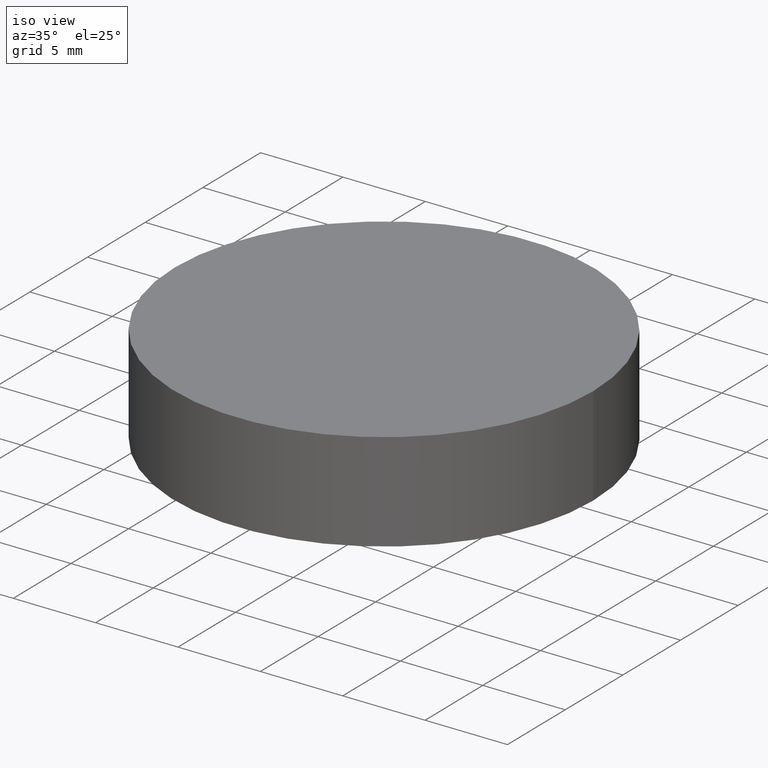
[diagram: clean part render]
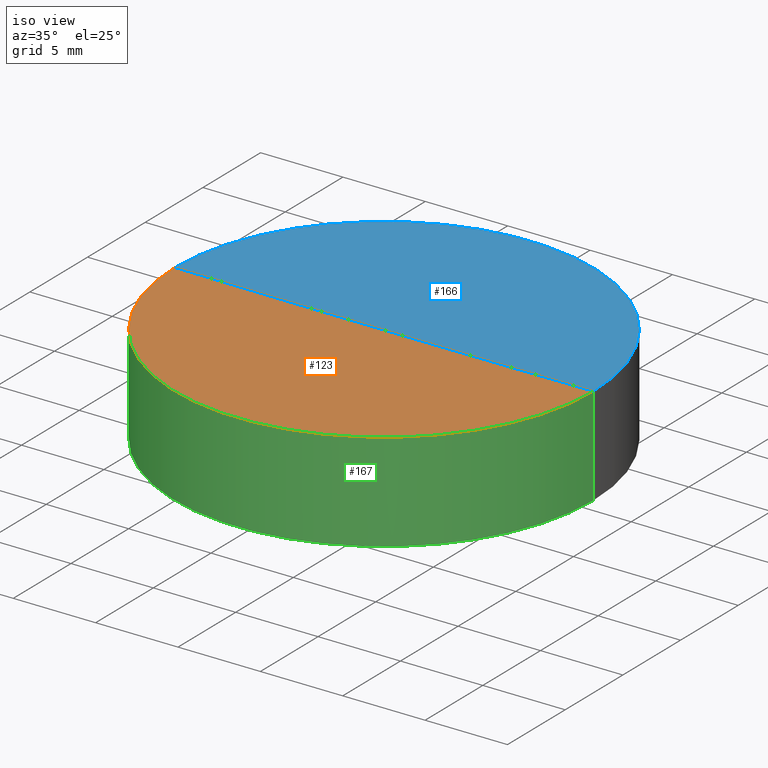
[diagram: same view with three faces highlighted in distinct colors, each labeled with its STEP entity id]
A machine part, iso view with three faces highlighted in distinct colors.
Their STEP definitions:

[orange] entity #123 — the highlighted spherical surface has radius 2000 mm.
#5 = ORIENTED_EDGE ( 'NONE', *, *, #79, .F. ) ;
#9 = CARTESIAN_POINT ( 'NONE',  ( 2.463307335887066074E-13, 0.000000000000000000, 2005.959677093515666 ) ) ;
#11 = DIRECTION ( 'NONE',  ( -0.000000000000000000, -0.000000000000000000, -1.000000000000000000 ) ) ;
#12 = CARTESIAN_POINT ( 'NONE',  ( 12.70000000001259721, 1.555301434918681247E-15, 6.000000000000005329 ) ) ;
#13 = CARTESIAN_POINT ( 'NONE',  ( 3.687954135034419575E-13, 0.000000000000000000, 5.959677093515747259 ) ) ;
#25 = DIRECTION ( 'NONE',  ( 1.000000000000000000, 1.224646799147353207E-16, 0.000000000000000000 ) ) ;
#27 = DIRECTION ( 'NONE',  ( 1.000000000000000000, 0.000000000000000000, 0.000000000000000000 ) ) ;
#29 = CIRCLE ( 'NONE', #168, 12.70000000001234852 ) ;
#33 = AXIS2_PLACEMENT_3D ( 'NONE', #40, #190, #25 ) ;
#40 = CARTESIAN_POINT ( 'NONE',  ( 2.463307335887066074E-13, 0.000000000000000000, 2005.959677093515666 ) ) ;
#41 = VERTEX_POINT ( 'NONE', #180 ) ;
#60 = EDGE_CURVE ( 'NONE', #41, #162, #111, .T. ) ;
#66 = CARTESIAN_POINT ( 'NONE',  ( 2.463307335887066074E-13, 0.000000000000000000, 2005.959677093515666 ) ) ;
#77 = AXIS2_PLACEMENT_3D ( 'NONE', #66, #130, #113 ) ;
#79 = EDGE_CURVE ( 'NONE', #135, #41, #29, .T. ) ;
#87 = ORIENTED_EDGE ( 'NONE', *, *, #90, .T. ) ;
#90 = EDGE_CURVE ( 'NONE', #135, #162, #184, .T. ) ;
#100 = ORIENTED_EDGE ( 'NONE', *, *, #60, .F. ) ;
#102 = CARTESIAN_POINT ( 'NONE',  ( 2.463307335887066074E-13, 0.000000000000000000, 6.000000000000005329 ) ) ;
#104 = FACE_OUTER_BOUND ( 'NONE', #131, .T. ) ;
#111 = CIRCLE ( 'NONE', #33, 2000.000000000000000 ) ;
#113 = DIRECTION ( 'NONE',  ( 0.000000000000000000, 0.000000000000000000, 1.000000000000000000 ) ) ;
#123 = ADVANCED_FACE ( 'NONE', ( #104 ), #147, .F. ) ;
#130 = DIRECTION ( 'NONE',  ( 0.000000000000000000, 1.000000000000000000, -0.000000000000000000 ) ) ;
#131 = EDGE_LOOP ( 'NONE', ( #100, #5, #87 ) ) ;
#134 = DIRECTION ( 'NONE',  ( 0.000000000000000000, -1.000000000000000000, -0.000000000000000000 ) ) ;
#135 = VERTEX_POINT ( 'NONE', #12 ) ;
#144 = AXIS2_PLACEMENT_3D ( 'NONE', #9, #134, #27 ) ;
#147 = SPHERICAL_SURFACE ( 'NONE', #144, 2000.000000000000000 ) ;
#159 = DIRECTION ( 'NONE',  ( 1.000000000000000000, 0.000000000000000000, 0.000000000000000000 ) ) ;
#162 = VERTEX_POINT ( 'NONE', #13 ) ;
#168 = AXIS2_PLACEMENT_3D ( 'NONE', #102, #11, #159 ) ;
#180 = CARTESIAN_POINT ( 'NONE',  ( -12.70000000001210338, 0.000000000000000000, 6.000000000000005329 ) ) ;
#184 = CIRCLE ( 'NONE', #77, 2000.000000000000455 ) ;
#190 = DIRECTION ( 'NONE',  ( 1.224646799147353207E-16, -1.000000000000000000, 0.000000000000000000 ) ) ;

[blue] entity #166 — the highlighted spherical surface has radius 2000 mm.
#2 = DIRECTION ( 'NONE',  ( -0.000000000000000000, -0.000000000000000000, -1.000000000000000000 ) ) ;
#12 = CARTESIAN_POINT ( 'NONE',  ( 12.70000000001259721, 1.555301434918681247E-15, 6.000000000000005329 ) ) ;
#13 = CARTESIAN_POINT ( 'NONE',  ( 3.687954135034419575E-13, 0.000000000000000000, 5.959677093515747259 ) ) ;
#25 = DIRECTION ( 'NONE',  ( 1.000000000000000000, 1.224646799147353207E-16, 0.000000000000000000 ) ) ;
#33 = AXIS2_PLACEMENT_3D ( 'NONE', #40, #190, #25 ) ;
#40 = CARTESIAN_POINT ( 'NONE',  ( 2.463307335887066074E-13, 0.000000000000000000, 2005.959677093515666 ) ) ;
#41 = VERTEX_POINT ( 'NONE', #180 ) ;
#44 = FACE_OUTER_BOUND ( 'NONE', #117, .T. ) ;
#52 = AXIS2_PLACEMENT_3D ( 'NONE', #138, #2, #64 ) ;
#60 = EDGE_CURVE ( 'NONE', #41, #162, #111, .T. ) ;
#61 = SPHERICAL_SURFACE ( 'NONE', #122, 2000.000000000000000 ) ;
#64 = DIRECTION ( 'NONE',  ( 1.000000000000000000, 0.000000000000000000, 0.000000000000000000 ) ) ;
#66 = CARTESIAN_POINT ( 'NONE',  ( 2.463307335887066074E-13, 0.000000000000000000, 2005.959677093515666 ) ) ;
#70 = ORIENTED_EDGE ( 'NONE', *, *, #60, .T. ) ;
#72 = ORIENTED_EDGE ( 'NONE', *, *, #186, .F. ) ;
#77 = AXIS2_PLACEMENT_3D ( 'NONE', #66, #130, #113 ) ;
#89 = DIRECTION ( 'NONE',  ( 1.000000000000000000, 0.000000000000000000, 0.000000000000000000 ) ) ;
#90 = EDGE_CURVE ( 'NONE', #135, #162, #184, .T. ) ;
#108 = CIRCLE ( 'NONE', #52, 12.70000000001234852 ) ;
#111 = CIRCLE ( 'NONE', #33, 2000.000000000000000 ) ;
#113 = DIRECTION ( 'NONE',  ( 0.000000000000000000, 0.000000000000000000, 1.000000000000000000 ) ) ;
#117 = EDGE_LOOP ( 'NONE', ( #72, #70, #164 ) ) ;
#121 = DIRECTION ( 'NONE',  ( 0.000000000000000000, -1.000000000000000000, -0.000000000000000000 ) ) ;
#122 = AXIS2_PLACEMENT_3D ( 'NONE', #148, #121, #89 ) ;
#130 = DIRECTION ( 'NONE',  ( 0.000000000000000000, 1.000000000000000000, -0.000000000000000000 ) ) ;
#135 = VERTEX_POINT ( 'NONE', #12 ) ;
#138 = CARTESIAN_POINT ( 'NONE',  ( 2.463307335887066074E-13, 0.000000000000000000, 6.000000000000005329 ) ) ;
#148 = CARTESIAN_POINT ( 'NONE',  ( 2.463307335887066074E-13, 0.000000000000000000, 2005.959677093515666 ) ) ;
#162 = VERTEX_POINT ( 'NONE', #13 ) ;
#164 = ORIENTED_EDGE ( 'NONE', *, *, #90, .F. ) ;
#166 = ADVANCED_FACE ( 'NONE', ( #44 ), #61, .F. ) ;
#180 = CARTESIAN_POINT ( 'NONE',  ( -12.70000000001210338, 0.000000000000000000, 6.000000000000005329 ) ) ;
#184 = CIRCLE ( 'NONE', #77, 2000.000000000000455 ) ;
#186 = EDGE_CURVE ( 'NONE', #41, #135, #108, .T. ) ;
#190 = DIRECTION ( 'NONE',  ( 1.224646799147353207E-16, -1.000000000000000000, 0.000000000000000000 ) ) ;

[green] entity #167 — the highlighted cylindrical surface (partial cylindrical patch) has radius 12.7 mm, axis along (-0, -0, -1).
#11 = DIRECTION ( 'NONE',  ( -0.000000000000000000, -0.000000000000000000, -1.000000000000000000 ) ) ;
#12 = CARTESIAN_POINT ( 'NONE',  ( 12.70000000001259721, 1.555301434918681247E-15, 6.000000000000005329 ) ) ;
#18 = ORIENTED_EDGE ( 'NONE', *, *, #79, .T. ) ;
#22 = LINE ( 'NONE', #58, #97 ) ;
#28 = CARTESIAN_POINT ( 'NONE',  ( 0.000000000000000000, 0.000000000000000000, 6.000000000000000000 ) ) ;
#29 = CIRCLE ( 'NONE', #168, 12.70000000001234852 ) ;
#36 = ORIENTED_EDGE ( 'NONE', *, *, #112, .F. ) ;
#39 = EDGE_LOOP ( 'NONE', ( #36, #18, #43, #110 ) ) ;
#41 = VERTEX_POINT ( 'NONE', #180 ) ;
#42 = VECTOR ( 'NONE', #115, 1000.000000000000000 ) ;
#43 = ORIENTED_EDGE ( 'NONE', *, *, #73, .T. ) ;
#45 = EDGE_CURVE ( 'NONE', #145, #141, #125, .T. ) ;
#46 = AXIS2_PLACEMENT_3D ( 'NONE', #71, #133, #57 ) ;
#47 = CYLINDRICAL_SURFACE ( 'NONE', #86, 12.69999999999999929 ) ;
#57 = DIRECTION ( 'NONE',  ( 1.000000000000000000, 0.000000000000000000, 0.000000000000000000 ) ) ;
#58 = CARTESIAN_POINT ( 'NONE',  ( 12.69999999999999929, 1.555301434917138433E-15, 6.000000000000000000 ) ) ;
#71 = CARTESIAN_POINT ( 'NONE',  ( 0.000000000000000000, 0.000000000000000000, 0.000000000000000000 ) ) ;
#73 = EDGE_CURVE ( 'NONE', #41, #145, #195, .T. ) ;
#74 = DIRECTION ( 'NONE',  ( -0.000000000000000000, -0.000000000000000000, -1.000000000000000000 ) ) ;
#79 = EDGE_CURVE ( 'NONE', #135, #41, #29, .T. ) ;
#80 = DIRECTION ( 'NONE',  ( -1.000000000000000000, 0.000000000000000000, 0.000000000000000000 ) ) ;
#86 = AXIS2_PLACEMENT_3D ( 'NONE', #28, #74, #80 ) ;
#97 = VECTOR ( 'NONE', #182, 1000.000000000000000 ) ;
#102 = CARTESIAN_POINT ( 'NONE',  ( 2.463307335887066074E-13, 0.000000000000000000, 6.000000000000005329 ) ) ;
#105 = CARTESIAN_POINT ( 'NONE',  ( -12.69999999999999929, 0.000000000000000000, 6.000000000000000000 ) ) ;
#110 = ORIENTED_EDGE ( 'NONE', *, *, #45, .T. ) ;
#112 = EDGE_CURVE ( 'NONE', #135, #141, #22, .T. ) ;
#115 = DIRECTION ( 'NONE',  ( -0.000000000000000000, -0.000000000000000000, -1.000000000000000000 ) ) ;
#120 = CARTESIAN_POINT ( 'NONE',  ( 12.69999999999999929, 1.555301434917138433E-15, 0.000000000000000000 ) ) ;
#125 = CIRCLE ( 'NONE', #46, 12.69999999999999929 ) ;
#133 = DIRECTION ( 'NONE',  ( 0.000000000000000000, 0.000000000000000000, 1.000000000000000000 ) ) ;
#135 = VERTEX_POINT ( 'NONE', #12 ) ;
#141 = VERTEX_POINT ( 'NONE', #120 ) ;
#145 = VERTEX_POINT ( 'NONE', #183 ) ;
#159 = DIRECTION ( 'NONE',  ( 1.000000000000000000, 0.000000000000000000, 0.000000000000000000 ) ) ;
#165 = FACE_OUTER_BOUND ( 'NONE', #39, .T. ) ;
#167 = ADVANCED_FACE ( 'NONE', ( #165 ), #47, .T. ) ;
#168 = AXIS2_PLACEMENT_3D ( 'NONE', #102, #11, #159 ) ;
#180 = CARTESIAN_POINT ( 'NONE',  ( -12.70000000001210338, 0.000000000000000000, 6.000000000000005329 ) ) ;
#182 = DIRECTION ( 'NONE',  ( -0.000000000000000000, -0.000000000000000000, -1.000000000000000000 ) ) ;
#183 = CARTESIAN_POINT ( 'NONE',  ( -12.69999999999999929, 0.000000000000000000, 0.000000000000000000 ) ) ;
#195 = LINE ( 'NONE', #105, #42 ) ;